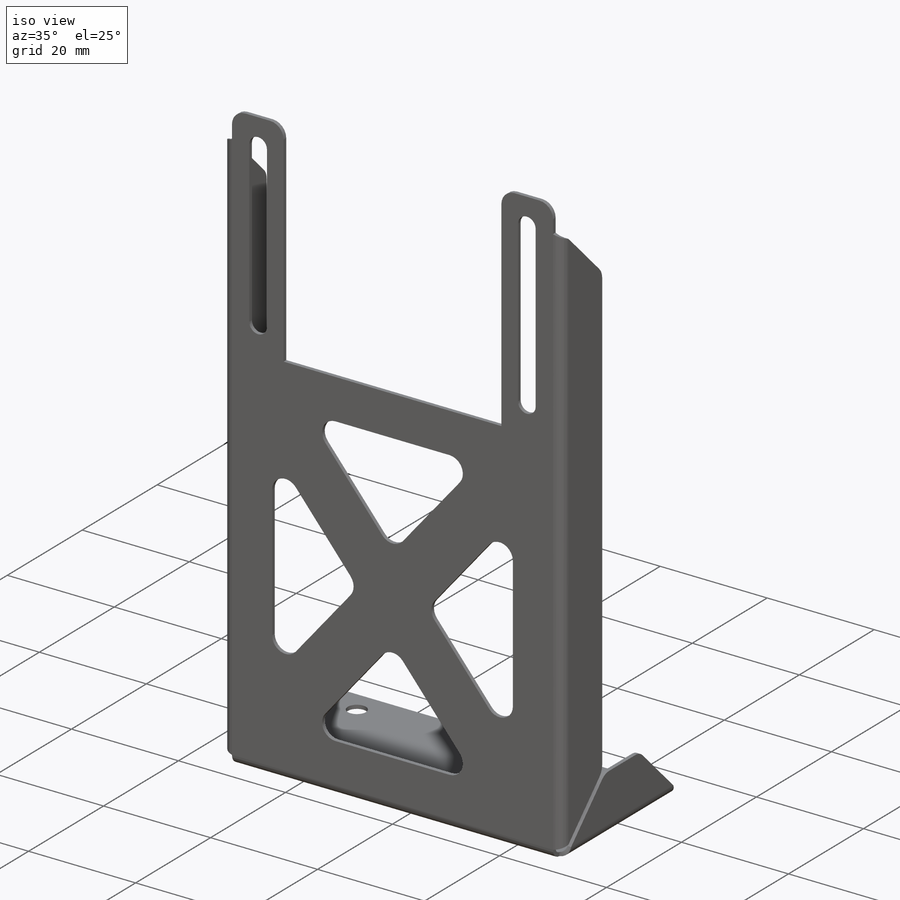
[diagram: iso view]
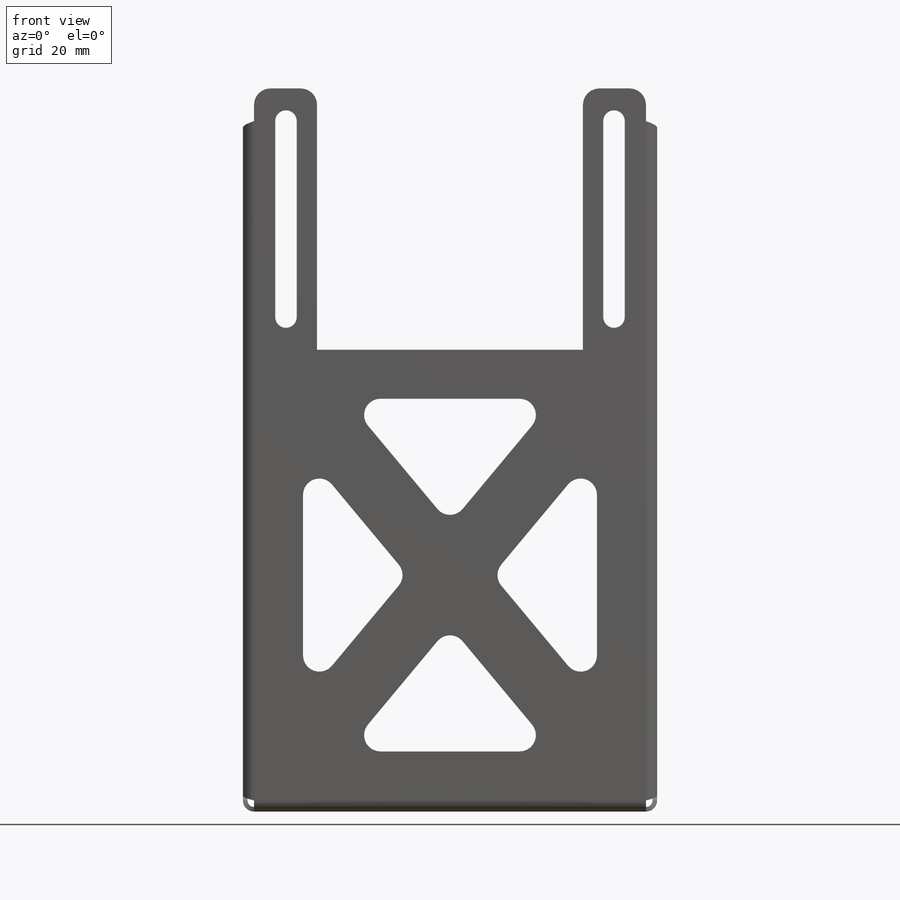
[diagram: front view]
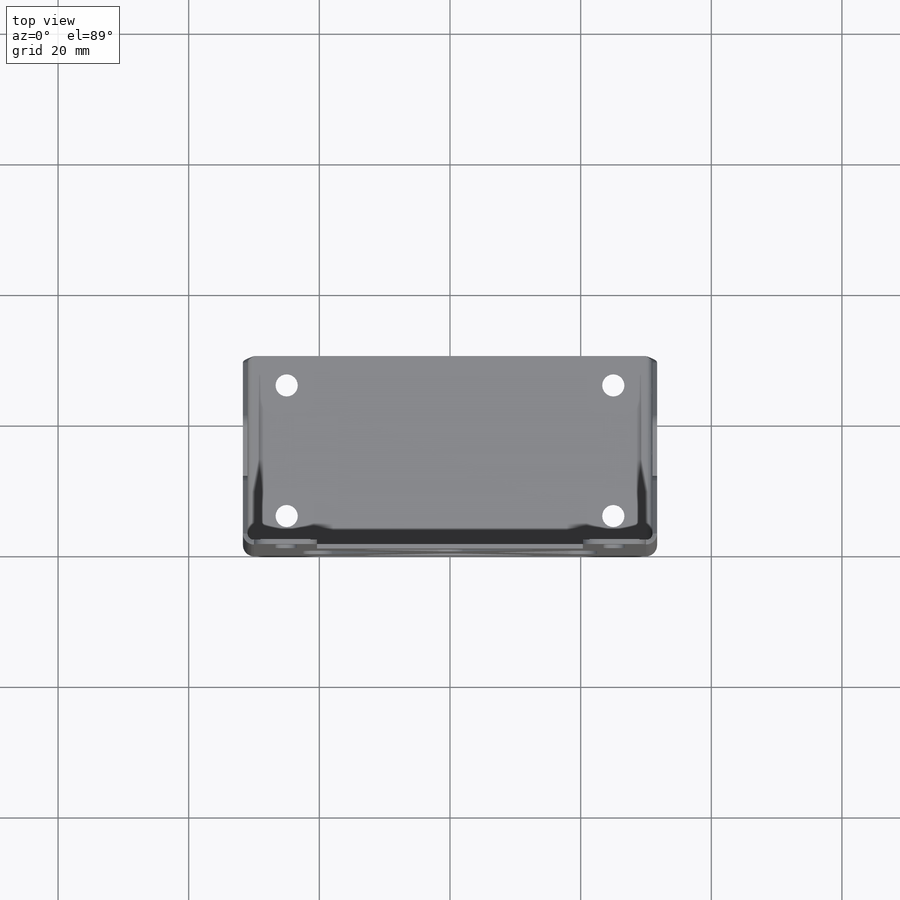
[diagram: top view]
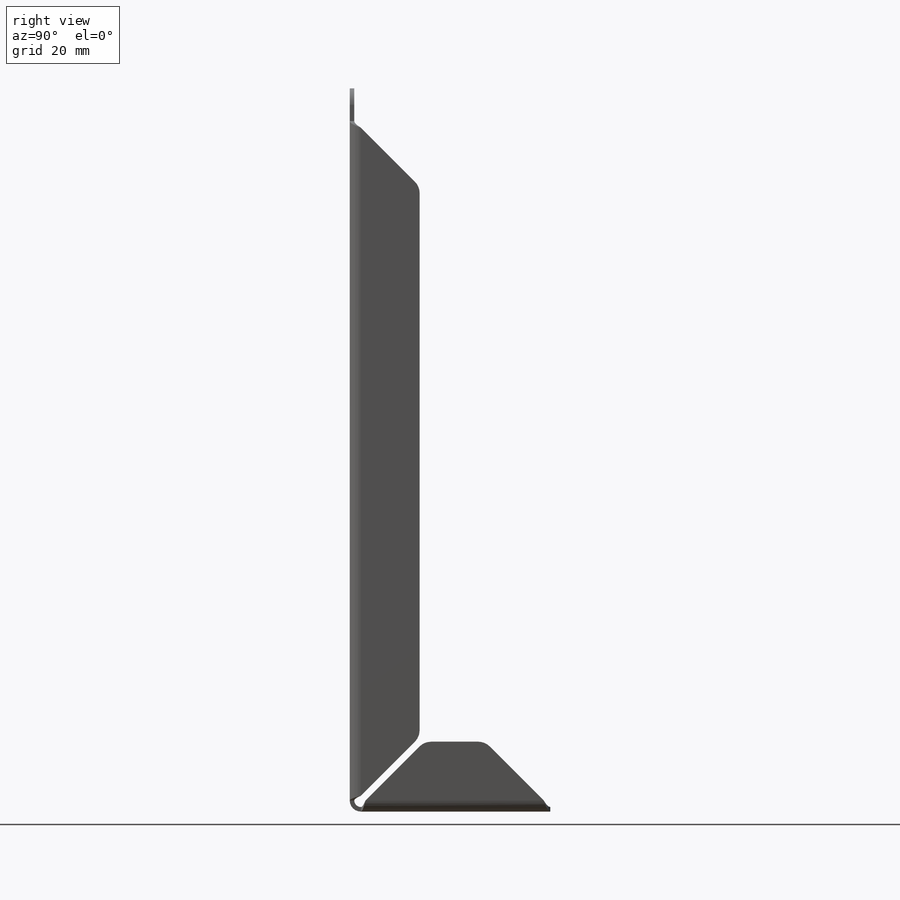
[diagram: right view]
SOLIDWORKS PART (.sldprt)
format: sldprt  version: not decoded by parser v0  size: 537,600 bytes
history: native  units: mm
features: sketch x11, sheet_metal_op x7, fillet x5, cut_extrude x3, material x1 + 1 further entry (+11 scaffold rows collapsed; 1 parser-record rows omitted)
feature tree (40):
  scaffold x11  (default folders/planes/origin — collapsed)
  material  "Plain Carbon Steel"
  sketch  "Sketch1"  dims[c1.D1=40.7mm c1.D2=40.0mm c1.D3=60.0mm c1.D4=65.0mm c1.D5=~13.109711mm c2.D4=70.0mm]
  sheet_metal_op  "Sheet-Metal1"
  sheet_metal_op  "Base-Flange1"
  sketch  "Sketch6"  dims[c1.D1=1.0mm c1.D4=90.0deg c1.D5=1.0 c1.D8=0.35mm c1.D9=0.35mm c2.D1=1.0mm c2.D2=500.0mm c2.D3=0.0mm c2.D6=10.0mm c2.D7=30.0mm]
  sheet_metal_op  "Edge-Flange2"
  sketch  "Sketch15"  dims[c1.D1=5.0mm c1.D2=10.0mm c2.D2=45.0deg c2.D3=10.0mm]
  sketch  "Sketch16"  dims[c1.D1=10.0mm c2.D1=45.0deg c2.D2=10.0mm]
  sketch  "Sketch17"  dims[c1.D1=10.0mm c2.D1=45.0deg c2.D2=10.0mm]
  sketch  "Sketch18"  dims[c1.D1=5.0mm c1.D2=10.0mm c2.D2=45.0deg c2.D3=10.0mm]
  sheet_metal_op  "EdgeBend2"
  sheet_metal_op  "EdgeBend3"
  sheet_metal_op  "EdgeBend4"
  sheet_metal_op  "EdgeBend5"
  sketch  "Sketch19"  dims[D1=3.3mm D2=30.0mm D3=50.216mm]
  cut_extrude  "Cut-Extrude1"  [1 undecoded]
  sketch  "Sketch20"  dims[D1=3.4mm D2=50.0mm D3=20.0mm]
  cut_extrude  "Cut-Extrude2"  [1 undecoded]
  sketch  "Sketch22"  dims[D1=7.5mm D2=7.5mm D3=7.5mm D4=7.5mm D5=5.0mm D6=5.0mm]
  cut_extrude  "Cut-Extrude3"  Depth=2.5mm
  fillet  "Fillet1"  Radius=2.5mm
  "Flat-Pattern1"
  sketch  "Bend-Lines1"
  sketch  "Bounding-Box1"
  fillet  "Flatten-<EdgeBend2>1"  [1 undecoded]
  fillet  "Flatten-<EdgeBend3>1"  [1 undecoded]
  fillet  "Flatten-<EdgeBend4>1"  [1 undecoded]
  fillet  "Flatten-<EdgeBend5>1"  [1 undecoded]
  parser-record x1  (decoder bookkeeping rows leaked as tree rows — omitted from the tree; the rows remain in map.json)
decode coverage: 11 of 26 modeling features carry decoded parameters; 1 rows unclassified (native names shown)
note: ~ marks probable driven/reference dimensions
note: 6 parameter values undecoded
summary: no parameter record found for 6 features
note: suppression state not decoded; provenance and decode notes live in map.json
